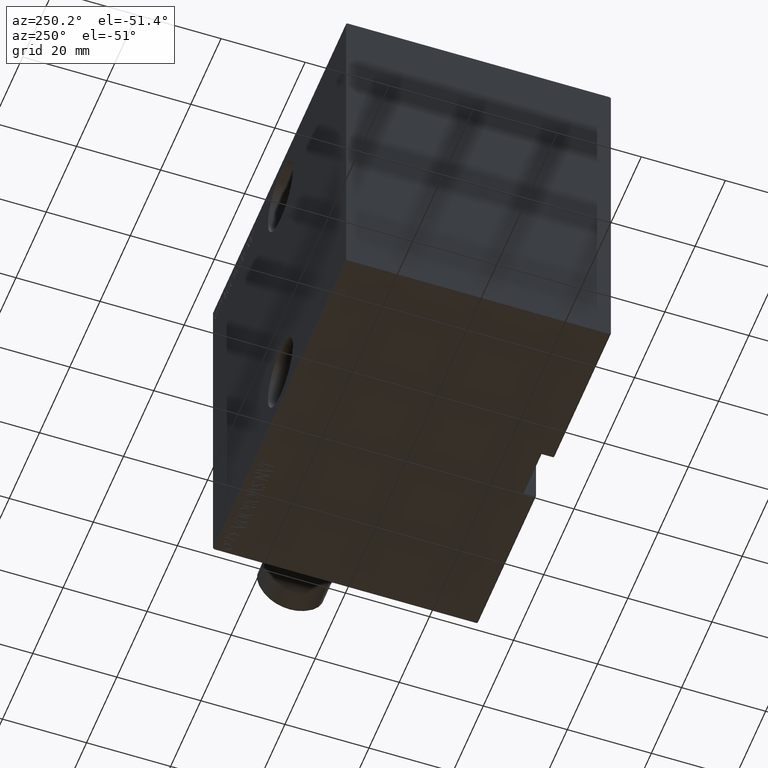
[diagram: clean part render]
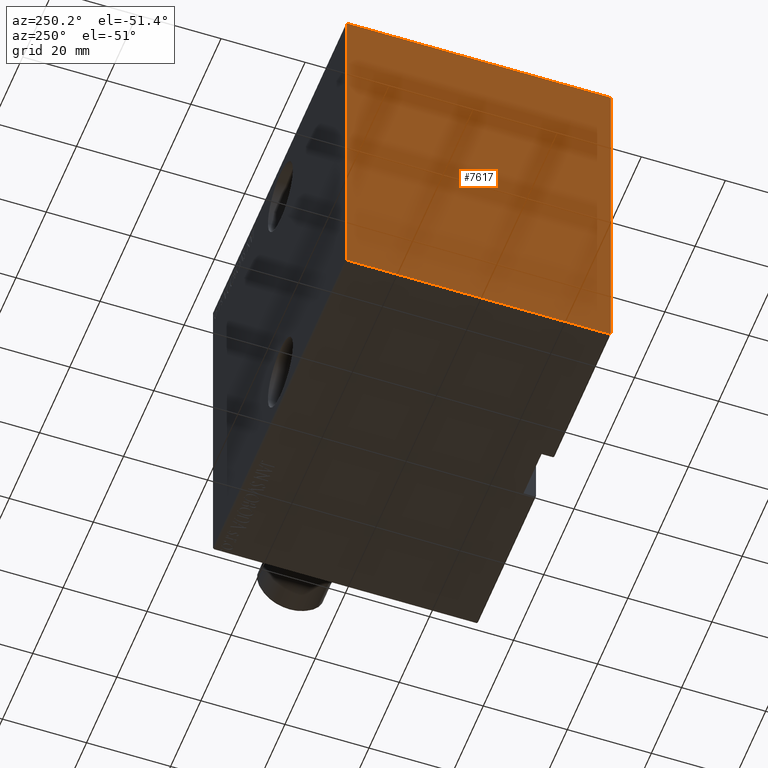
[diagram: same view with one face highlighted and labeled with its STEP entity id]
A machine part, auxiliary view. The second image highlights one B-rep face of the part: STEP entity #7617.
In plain terms, the highlighted planar face has unit normal (-1, 0, 0).
Its self-contained STEP definition (entity closure, byte-faithful):
#1034 = VECTOR ( 'NONE', #1874, 1000.000000000000000 ) ;
#1122 = CARTESIAN_POINT ( 'NONE',  ( 88.00000000000000000, 31.50000000000001421, -42.20000000000000284 ) ) ;
#1343 = EDGE_CURVE ( 'NONE', #21799, #15650, #13338, .T. ) ;
#1654 = CARTESIAN_POINT ( 'NONE',  ( 88.00000000000000000, 36.84999999999892140, 36.85000000000147224 ) ) ;
#1874 = DIRECTION ( 'NONE',  ( -0.000000000000000000, -0.7071067811865721087, 0.7071067811865230368 ) ) ;
#2717 = CARTESIAN_POINT ( 'NONE',  ( 88.00000000000000000, 0.000000000000000000, 0.000000000000000000 ) ) ;
#3319 = CARTESIAN_POINT ( 'NONE',  ( 88.00000000000000000, -31.19999999999997797, 42.49999999999998579 ) ) ;
#3711 = CARTESIAN_POINT ( 'NONE',  ( 88.00000000000000000, 31.19999999999999218, 42.50000000000000000 ) ) ;
#3863 = EDGE_CURVE ( 'NONE', #39976, #23933, #21215, .T. ) ;
#4010 = CARTESIAN_POINT ( 'NONE',  ( 88.00000000000000000, -36.84999999999963904, -36.85000000000048459 ) ) ;
#4099 = VERTEX_POINT ( 'NONE', #40271 ) ;
#4295 = DIRECTION ( 'NONE',  ( 0.000000000000000000, -0.7071067811865393571, -0.7071067811865556774 ) ) ;
#4939 = CARTESIAN_POINT ( 'NONE',  ( 88.00000000000000000, -31.49999999999999289, 42.49999999999998579 ) ) ;
#4979 = CARTESIAN_POINT ( 'NONE',  ( 88.00000000000000000, 31.50000000000001421, -42.50000000000000711 ) ) ;
#5161 = VECTOR ( 'NONE', #24299, 1000.000000000000000 ) ;
#6655 = FACE_OUTER_BOUND ( 'NONE', #16006, .T. ) ;
#7596 = LINE ( 'NONE', #1654, #1034 ) ;
#7617 = ADVANCED_FACE ( 'NONE', ( #6655 ), #9949, .T. ) ;
#8137 = ORIENTED_EDGE ( 'NONE', *, *, #34806, .T. ) ;
#9180 = EDGE_CURVE ( 'NONE', #15650, #22876, #10886, .T. ) ;
#9949 = PLANE ( 'NONE',  #15764 ) ;
#10876 = CARTESIAN_POINT ( 'NONE',  ( 88.00000000000000000, 31.50000000000000000, 42.20000000000001705 ) ) ;
#10886 = LINE ( 'NONE', #34340, #25618 ) ;
#10911 = CARTESIAN_POINT ( 'NONE',  ( 88.00000000000000000, -31.49999999999999289, 42.19999999999996732 ) ) ;
#13033 = DIRECTION ( 'NONE',  ( 1.000000000000000000, 0.000000000000000000, 0.000000000000000000 ) ) ;
#13338 = LINE ( 'NONE', #16407, #34500 ) ;
#13370 = DIRECTION ( 'NONE',  ( 0.000000000000000000, 1.000000000000000000, 0.000000000000000000 ) ) ;
#13724 = VECTOR ( 'NONE', #18320, 1000.000000000000000 ) ;
#15650 = VERTEX_POINT ( 'NONE', #3319 ) ;
#15764 = AXIS2_PLACEMENT_3D ( 'NONE', #2717, #13033, #30112 ) ;
#16006 = EDGE_LOOP ( 'NONE', ( #27022, #24973, #37071, #25512, #32972, #25234, #8137, #40599 ) ) ;
#16407 = CARTESIAN_POINT ( 'NONE',  ( 88.00000000000000000, 31.50000000000000000, 42.50000000000000000 ) ) ;
#17079 = LINE ( 'NONE', #37040, #25323 ) ;
#18320 = DIRECTION ( 'NONE',  ( 0.000000000000000000, 0.000000000000000000, -1.000000000000000000 ) ) ;
#18555 = VECTOR ( 'NONE', #36697, 1000.000000000000000 ) ;
#18589 = VECTOR ( 'NONE', #19257, 1000.000000000000000 ) ;
#19257 = DIRECTION ( 'NONE',  ( -0.000000000000000000, 0.7071067811865393571, 0.7071067811865556774 ) ) ;
#19271 = EDGE_CURVE ( 'NONE', #4099, #41626, #17079, .T. ) ;
#21215 = LINE ( 'NONE', #4979, #5161 ) ;
#21799 = VERTEX_POINT ( 'NONE', #3711 ) ;
#22876 = VERTEX_POINT ( 'NONE', #10911 ) ;
#23933 = VERTEX_POINT ( 'NONE', #10876 ) ;
#24299 = DIRECTION ( 'NONE',  ( 0.000000000000000000, -1.632680918566406300E-16, 1.000000000000000000 ) ) ;
#24973 = ORIENTED_EDGE ( 'NONE', *, *, #35276, .T. ) ;
#25234 = ORIENTED_EDGE ( 'NONE', *, *, #9180, .T. ) ;
#25323 = VECTOR ( 'NONE', #13370, 1000.000000000000000 ) ;
#25512 = ORIENTED_EDGE ( 'NONE', *, *, #27943, .T. ) ;
#25618 = VECTOR ( 'NONE', #4295, 1000.000000000000114 ) ;
#26813 = LINE ( 'NONE', #4010, #18555 ) ;
#27022 = ORIENTED_EDGE ( 'NONE', *, *, #19271, .T. ) ;
#27943 = EDGE_CURVE ( 'NONE', #23933, #21799, #7596, .T. ) ;
#28414 = LINE ( 'NONE', #4939, #13724 ) ;
#29130 = LINE ( 'NONE', #39434, #18589 ) ;
#29348 = DIRECTION ( 'NONE',  ( 0.000000000000000000, -1.000000000000000000, -2.202823461557850341E-16 ) ) ;
#30112 = DIRECTION ( 'NONE',  ( 0.000000000000000000, 0.000000000000000000, -1.000000000000000000 ) ) ;
#32972 = ORIENTED_EDGE ( 'NONE', *, *, #1343, .T. ) ;
#33762 = EDGE_CURVE ( 'NONE', #35405, #4099, #26813, .T. ) ;
#34340 = CARTESIAN_POINT ( 'NONE',  ( 88.00000000000000000, -36.85000000000034248, 36.84999999999949694 ) ) ;
#34500 = VECTOR ( 'NONE', #29348, 1000.000000000000000 ) ;
#34806 = EDGE_CURVE ( 'NONE', #22876, #35405, #28414, .T. ) ;
#35276 = EDGE_CURVE ( 'NONE', #41626, #39976, #29130, .T. ) ;
#35405 = VERTEX_POINT ( 'NONE', #36355 ) ;
#36355 = CARTESIAN_POINT ( 'NONE',  ( 88.00000000000000000, -31.49999999999999289, -42.20000000000000995 ) ) ;
#36697 = DIRECTION ( 'NONE',  ( -0.000000000000000000, 0.7071067811865556774, -0.7071067811865393571 ) ) ;
#37040 = CARTESIAN_POINT ( 'NONE',  ( 88.00000000000000000, -31.49999999999999289, -42.50000000000000711 ) ) ;
#37071 = ORIENTED_EDGE ( 'NONE', *, *, #3863, .T. ) ;
#39434 = CARTESIAN_POINT ( 'NONE',  ( 88.00000000000000000, 36.85000000000037090, -36.84999999999952536 ) ) ;
#39976 = VERTEX_POINT ( 'NONE', #1122 ) ;
#40111 = CARTESIAN_POINT ( 'NONE',  ( 88.00000000000000000, 31.20000000000001350, -42.50000000000000711 ) ) ;
#40271 = CARTESIAN_POINT ( 'NONE',  ( 88.00000000000000000, -31.19999999999998508, -42.50000000000000711 ) ) ;
#40599 = ORIENTED_EDGE ( 'NONE', *, *, #33762, .T. ) ;
#41626 = VERTEX_POINT ( 'NONE', #40111 ) ;